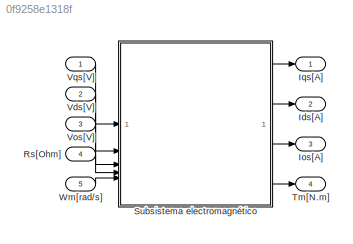
MODEL slx_0f9258e1318f
KIND model
CONFIG AbsTol = auto
CONFIG EnableMultiTasking = off
CONFIG FixedStep = auto
CONFIG MaxStep = auto
CONFIG MinStep = auto
CONFIG RelTol = 1e-3
CONFIG SampleTimeConstraint = Unconstrained
CONFIG SolverName = VariableStepAuto
CONFIG StartTime = 0.0
CONFIG StopTime = 10.0
BLOCK [Outport] Ids[A]
  Port = 2
BLOCK [Outport] Ios[A]
  Port = 3
BLOCK [Outport] Iqs[A]
BLOCK [Inport] Rs[Ohm]
  Port = 4
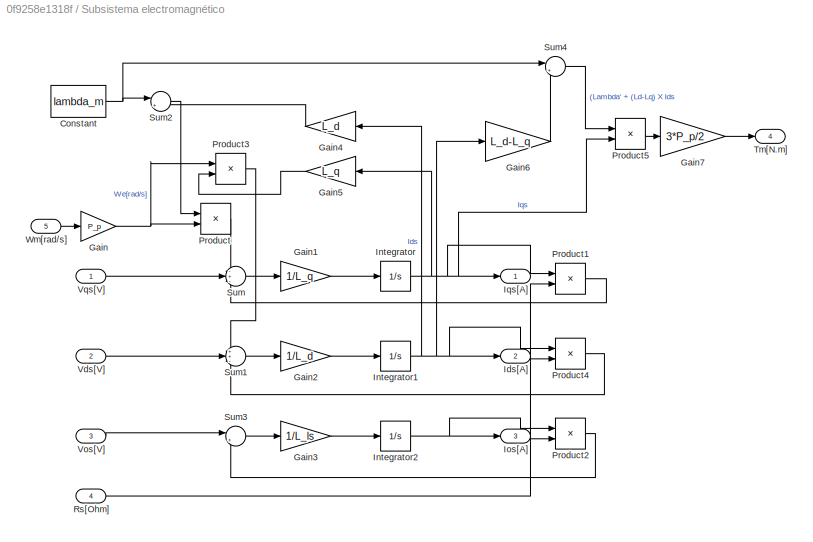
BLOCK [SubSystem] Subsistema electromagnético
BLOCK [Constant] Subsistema electromagnético/Constant
  Value = lambda_m
BLOCK [Gain] Subsistema electromagnético/Gain
  Gain = P_p
BLOCK [Gain] Subsistema electromagnético/Gain1
  Gain = 1/L_q
BLOCK [Gain] Subsistema electromagnético/Gain2
  Gain = 1/L_d
BLOCK [Gain] Subsistema electromagnético/Gain3
  Gain = 1/L_ls
BLOCK [Gain] Subsistema electromagnético/Gain4
  Gain = L_d
BLOCK [Gain] Subsistema electromagnético/Gain5
  Gain = L_q
BLOCK [Gain] Subsistema electromagnético/Gain6
  Gain = L_d-L_q
BLOCK [Gain] Subsistema electromagnético/Gain7
  Gain = 3*P_p/2
BLOCK [Outport] Subsistema electromagnético/Ids[A]
  Port = 2
BLOCK [Integrator] Subsistema electromagnético/Integrator
BLOCK [Integrator] Subsistema electromagnético/Integrator1
BLOCK [Integrator] Subsistema electromagnético/Integrator2
BLOCK [Outport] Subsistema electromagnético/Ios[A]
  Port = 3
BLOCK [Outport] Subsistema electromagnético/Iqs[A]
BLOCK [Product] Subsistema electromagnético/Product
BLOCK [Product] Subsistema electromagnético/Product1
BLOCK [Product] Subsistema electromagnético/Product2
BLOCK [Product] Subsistema electromagnético/Product3
BLOCK [Product] Subsistema electromagnético/Product4
BLOCK [Product] Subsistema electromagnético/Product5
BLOCK [Inport] Subsistema electromagnético/Rs[Ohm]
  Port = 4
BLOCK [Sum] Subsistema electromagnético/Sum
  Inputs = -+-
BLOCK [Sum] Subsistema electromagnético/Sum1
  Inputs = ++-
BLOCK [Sum] Subsistema electromagnético/Sum2
  Inputs = |++
BLOCK [Sum] Subsistema electromagnético/Sum3
  Inputs = |+-
BLOCK [Sum] Subsistema electromagnético/Sum4
  Inputs = |++
BLOCK [Outport] Subsistema electromagnético/Tm[N.m]
  Port = 4
BLOCK [Inport] Subsistema electromagnético/Vds[V]
  Port = 2
BLOCK [Inport] Subsistema electromagnético/Vos[V]
  Port = 3
BLOCK [Inport] Subsistema electromagnético/Vqs[V]
BLOCK [Inport] Subsistema electromagnético/Wm[rad//s]
  Port = 5
BLOCK [Outport] Tm[N.m]
  Port = 4
BLOCK [Inport] Vds[V]
  Port = 2
BLOCK [Inport] Vos[V]
  Port = 3
BLOCK [Inport] Vqs[V]
BLOCK [Inport] Wm[rad//s]
  Port = 5
LINE Rs[Ohm]:1 -> Subsistema electromagnético:4
NET Subsistema electromagnético/Constant:1 -> Subsistema electromagnético/Sum2:1, Subsistema electromagnético/Sum4:1
LINE Subsistema electromagnético/Gain1:1 -> Subsistema electromagnético/Integrator:1
LINE Subsistema electromagnético/Gain2:1 -> Subsistema electromagnético/Integrator1:1
LINE Subsistema electromagnético/Gain3:1 -> Subsistema electromagnético/Integrator2:1
LINE Subsistema electromagnético/Gain4:1 -> Subsistema electromagnético/Sum2:2
LINE Subsistema electromagnético/Gain5:1 -> Subsistema electromagnético/Product3:2
LINE Subsistema electromagnético/Gain6:1 -> Subsistema electromagnético/Sum4:2
LINE Subsistema electromagnético/Gain7:1 -> Subsistema electromagnético/Tm[N.m]:1
NET Subsistema electromagnético/Gain:1 -> Subsistema electromagnético/Product3:1, Subsistema electromagnético/Product:2
NET Subsistema electromagnético/Integrator1:1 -> Subsistema electromagnético/Gain4:1, Subsistema electromagnético/Gain6:1, Subsistema electromagnético/Ids[A]:1, Subsistema electromagnético/Product4:1
NET Subsistema electromagnético/Integrator2:1 -> Subsistema electromagnético/Ios[A]:1, Subsistema electromagnético/Product2:1
NET Subsistema electromagnético/Integrator:1 -> Subsistema electromagnético/Gain5:1, Subsistema electromagnético/Iqs[A]:1, Subsistema electromagnético/Product1:1, Subsistema electromagnético/Product5:2
LINE Subsistema electromagnético/Product1:1 -> Subsistema electromagnético/Sum:3
LINE Subsistema electromagnético/Product2:1 -> Subsistema electromagnético/Sum3:2
LINE Subsistema electromagnético/Product3:1 -> Subsistema electromagnético/Sum1:1
LINE Subsistema electromagnético/Product4:1 -> Subsistema electromagnético/Sum1:3
LINE Subsistema electromagnético/Product5:1 -> Subsistema electromagnético/Gain7:1
LINE Subsistema electromagnético/Product:1 -> Subsistema electromagnético/Sum:1
NET Subsistema electromagnético/Rs[Ohm]:1 -> Subsistema electromagnético/Product1:2, Subsistema electromagnético/Product2:2, Subsistema electromagnético/Product4:2
LINE Subsistema electromagnético/Sum1:1 -> Subsistema electromagnético/Gain2:1
LINE Subsistema electromagnético/Sum2:1 -> Subsistema electromagnético/Product:1
LINE Subsistema electromagnético/Sum3:1 -> Subsistema electromagnético/Gain3:1
LINE Subsistema electromagnético/Sum4:1 -> Subsistema electromagnético/Product5:1
LINE Subsistema electromagnético/Sum:1 -> Subsistema electromagnético/Gain1:1
LINE Subsistema electromagnético/Vds[V]:1 -> Subsistema electromagnético/Sum1:2
LINE Subsistema electromagnético/Vos[V]:1 -> Subsistema electromagnético/Sum3:1
LINE Subsistema electromagnético/Vqs[V]:1 -> Subsistema electromagnético/Sum:2
LINE Subsistema electromagnético/Wm[rad//s]:1 -> Subsistema electromagnético/Gain:1
LINE Subsistema electromagnético:1 -> Iqs[A]:1
LINE Subsistema electromagnético:2 -> Ids[A]:1
LINE Subsistema electromagnético:3 -> Ios[A]:1
LINE Subsistema electromagnético:4 -> Tm[N.m]:1
LINE Vds[V]:1 -> Subsistema electromagnético:2
LINE Vos[V]:1 -> Subsistema electromagnético:3
LINE Vqs[V]:1 -> Subsistema electromagnético:1
LINE Wm[rad//s]:1 -> Subsistema electromagnético:5
note: NET lines group one-source signal fan-out (src -> all destinations, sorted); 1:1 wires keep LINE
